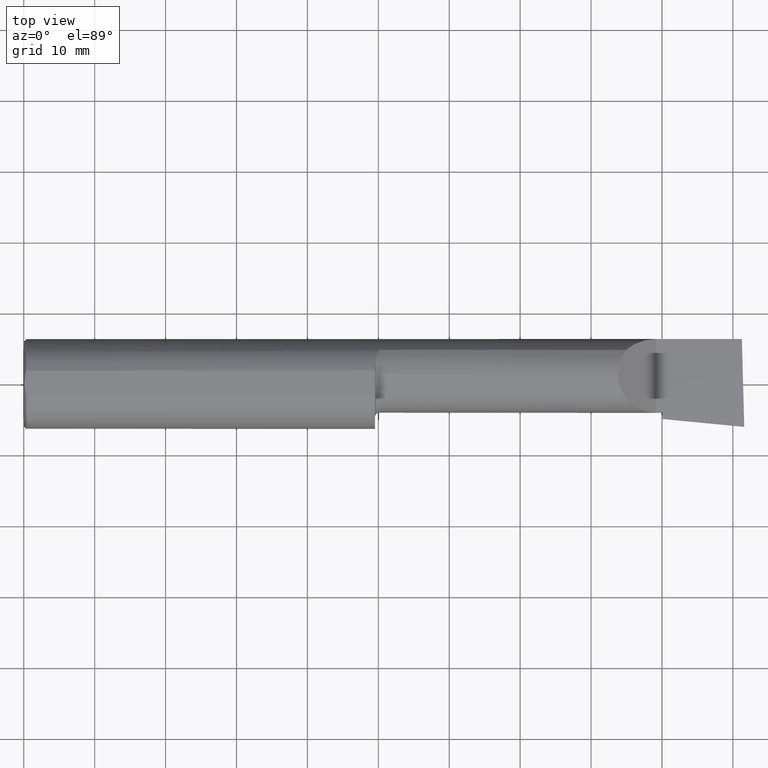
[diagram: clean part render]
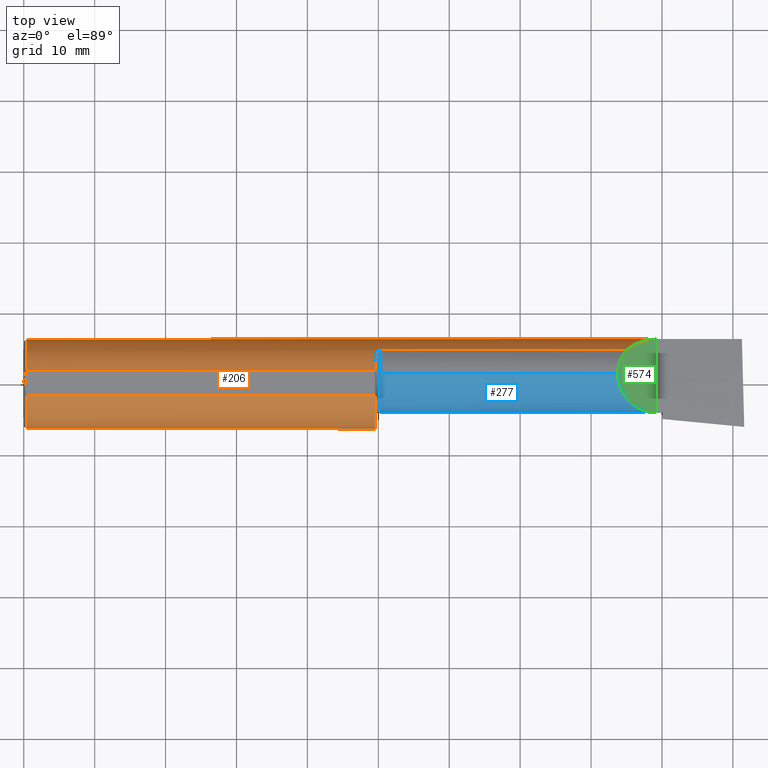
[diagram: same view with three faces highlighted in distinct colors, each labeled with its STEP entity id]
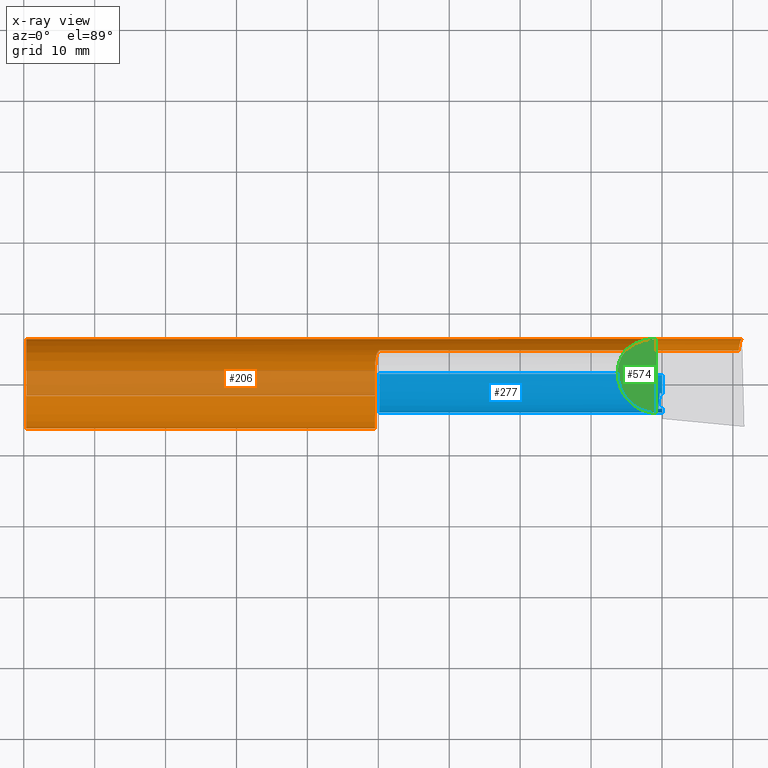
[diagram: x-ray of the same camera — body ghosted, the three highlighted faces saturated]
A machine part, top view with three faces highlighted in distinct colors.
The next image is the same camera in x-ray (body ghosted, the three faces saturated) — at least one of them is partly hidden behind the body in this view.
Their STEP definitions:

[orange] entity #206 — the highlighted cylindrical surface (partial cylindrical patch) has radius 6.3462 mm, axis along (-1, -0, -0).
#4 = CYLINDRICAL_SURFACE ( 'NONE', #106, 0.2498499999999999888 ) ;
#13 = VERTEX_POINT ( 'NONE', #49 ) ;
#14 = CARTESIAN_POINT ( 'NONE',  ( 1.970138573936399906, 0.1849738682364315823, -0.1679602226613267635 ) ) ;
#15 = ORIENTED_EDGE ( 'NONE', *, *, #587, .T. ) ;
#18 = AXIS2_PLACEMENT_3D ( 'NONE', #418, #716, #414 ) ;
#20 = CARTESIAN_POINT ( 'NONE',  ( 1.957341173198633433, 0.1582250006961543887, -0.1936724403215138446 ) ) ;
#24 = EDGE_CURVE ( 'NONE', #134, #599, #90, .T. ) ;
#33 = DIRECTION ( 'NONE',  ( -1.000000000000000000, -0.000000000000000000, -0.000000000000000000 ) ) ;
#36 = ORIENTED_EDGE ( 'NONE', *, *, #417, .T. ) ;
#37 = CARTESIAN_POINT ( 'NONE',  ( 1.950000000000000178, 0.000000000000000000, 0.000000000000000000 ) ) ;
#41 = DIRECTION ( 'NONE',  ( 0.000000000000000000, 0.000000000000000000, 1.000000000000000000 ) ) ;
#49 = CARTESIAN_POINT ( 'NONE',  ( 1.950000000000000178, 0.08036415094339534326, -0.2365726648265753795 ) ) ;
#51 = CARTESIAN_POINT ( 'NONE',  ( 1.975000000000000089, 0.1868028301886779929, 0.1659208399614101603 ) ) ;
#55 = VECTOR ( 'NONE', #425, 39.37007874015748143 ) ;
#62 =( BOUNDED_CURVE ( )  B_SPLINE_CURVE ( 3, ( #155, #262, #624, #404 ),
 .UNSPECIFIED., .F., .F. ) 
 B_SPLINE_CURVE_WITH_KNOTS ( ( 4, 4 ),
 ( 0.6220170400679905232, 1.348282100702874908 ),
 .UNSPECIFIED. ) 
 CURVE ( )  GEOMETRIC_REPRESENTATION_ITEM ( )  RATIONAL_B_SPLINE_CURVE ( ( 1.000000000000000000, 0.9565258159410993111, 0.9565258159410993111, 1.000000000000000000 ) ) 
 REPRESENTATION_ITEM ( '' )  );
#74 = CARTESIAN_POINT ( 'NONE',  ( 1.962765002235293599, 0.1743275501927397109, 0.1790622127600486335 ) ) ;
#76 = LINE ( 'NONE', #310, #273 ) ;
#79 = CIRCLE ( 'NONE', #347, 0.2498499999999999888 ) ;
#90 = CIRCLE ( 'NONE', #578, 0.2498499999999999888 ) ;
#91 = ORIENTED_EDGE ( 'NONE', *, *, #431, .F. ) ;
#92 = CARTESIAN_POINT ( 'NONE',  ( 0.01499999999999998904, 0.06997856814768362022, 0.2398500000000000076 ) ) ;
#104 = CARTESIAN_POINT ( 'NONE',  ( 0.000000000000000000, -0.06997856814768356470, 0.2398500000000000076 ) ) ;
#106 = AXIS2_PLACEMENT_3D ( 'NONE', #534, #415, #650 ) ;
#126 = CARTESIAN_POINT ( 'NONE',  ( 3.509999999999999787, 0.2498499999999998222, -6.245698675651498620E-17 ) ) ;
#131 = CARTESIAN_POINT ( 'NONE',  ( 1.973547768521294987, 0.1868028301886782705, -0.1659208399614101603 ) ) ;
#134 = VERTEX_POINT ( 'NONE', #466 ) ;
#137 = CARTESIAN_POINT ( 'NONE',  ( 1.965861643147096327, 0.1799299906519286341, 0.1733704358813192570 ) ) ;
#139 = CARTESIAN_POINT ( 'NONE',  ( 1.952700393434439796, 0.1312406203802477800, 0.2128933010837855688 ) ) ;
#148 = EDGE_CURVE ( 'NONE', #13, #714, #322, .T. ) ;
#155 = CARTESIAN_POINT ( 'NONE',  ( 3.968970726278978400, 0.1868028301886789366, -0.1659208399614092722 ) ) ;
#165 = VERTEX_POINT ( 'NONE', #290 ) ;
#167 = CARTESIAN_POINT ( 'NONE',  ( 2.760000000000000231, 0.1868028301886789366, -0.1659208399614092722 ) ) ;
#176 = EDGE_LOOP ( 'NONE', ( #91, #36, #481, #422, #582, #535, #309, #413, #638, #254, #435, #180, #15 ) ) ;
#180 = ORIENTED_EDGE ( 'NONE', *, *, #402, .T. ) ;
#181 = B_SPLINE_CURVE_WITH_KNOTS ( 'NONE', 3,
 ( #363, #602, #611, #321, #139, #664, #669, #483, #74, #137, #436, #308, #678, #316, #383, #494 ),
 .UNSPECIFIED., .F., .F.,
 ( 4, 2, 2, 2, 2, 2, 2, 4 ),
 ( 0.0001284169230012233967, 0.0009841683951816670127, 0.001839919867362110493, 0.002695671339542555275, 0.003123547075632775605, 0.003337484943677882301, 0.003444453877700434565, 0.003551422811722986829 ),
 .UNSPECIFIED. ) ;
#182 = CARTESIAN_POINT ( 'NONE',  ( 7.089685198749692867E-32, 0.2498499999999999610, 4.685946446163635703E-16 ) ) ;
#186 = CARTESIAN_POINT ( 'NONE',  ( 1.961285743882607902, 0.1704402150608101962, -0.1827701868778709715 ) ) ;
#188 = VERTEX_POINT ( 'NONE', #710 ) ;
#196 = CARTESIAN_POINT ( 'NONE',  ( 0.01499999999999965423, -0.06997856814768402267, 0.2398500000000000076 ) ) ;
#206 = ADVANCED_FACE ( 'NONE', ( #704 ), #4, .T. ) ;
#213 = DIRECTION ( 'NONE',  ( -1.000000000000000000, -0.000000000000000000, -0.000000000000000000 ) ) ;
#220 = LINE ( 'NONE', #167, #393 ) ;
#226 = EDGE_CURVE ( 'NONE', #540, #734, #348, .T. ) ;
#245 = CIRCLE ( 'NONE', #18, 0.2498499999999999888 ) ;
#252 = VECTOR ( 'NONE', #444, 39.37007874015748143 ) ;
#254 = ORIENTED_EDGE ( 'NONE', *, *, #302, .T. ) ;
#262 = CARTESIAN_POINT ( 'NONE',  ( 3.973345850378709798, 0.2278791102234772881, -0.1196748990301331472 ) ) ;
#273 = VECTOR ( 'NONE', #656, 39.37007874015748143 ) ;
#278 = CARTESIAN_POINT ( 'NONE',  ( 3.509999999999999787, 0.2498499999999998222, -6.245698675651498620E-17 ) ) ;
#290 = CARTESIAN_POINT ( 'NONE',  ( 1.950000000000000178, 0.06997856814768363409, 0.2398500000000000076 ) ) ;
#297 = LINE ( 'NONE', #182, #55 ) ;
#300 = VERTEX_POINT ( 'NONE', #423 ) ;
#302 = EDGE_CURVE ( 'NONE', #519, #540, #181, .T. ) ;
#308 = CARTESIAN_POINT ( 'NONE',  ( 1.969294329172793789, 0.1841965204963175451, 0.1688138510234148959 ) ) ;
#309 = ORIENTED_EDGE ( 'NONE', *, *, #579, .F. ) ;
#310 = CARTESIAN_POINT ( 'NONE',  ( 0.000000000000000000, 0.06997856814768362022, 0.2398500000000000076 ) ) ;
#316 = CARTESIAN_POINT ( 'NONE',  ( 1.972248316546590496, 0.1862833954073875031, 0.1665066509556023255 ) ) ;
#321 = CARTESIAN_POINT ( 'NONE',  ( 1.951680899895053223, 0.1215019751025619016, 0.2186055937858619458 ) ) ;
#322 = CIRCLE ( 'NONE', #653, 0.2498499999999999888 ) ;
#341 = CARTESIAN_POINT ( 'NONE',  ( 1.969285582744839003, 0.1841881072713794365, -0.1688230283719365232 ) ) ;
#347 = AXIS2_PLACEMENT_3D ( 'NONE', #37, #213, #41 ) ;
#348 = LINE ( 'NONE', #464, #676 ) ;
#350 = DIRECTION ( 'NONE',  ( -1.000000000000000000, -0.000000000000000000, -0.000000000000000000 ) ) ;
#357 = CARTESIAN_POINT ( 'NONE',  ( 1.975000000000000089, 0.1868028301886779097, -0.1659208399614102436 ) ) ;
#363 = CARTESIAN_POINT ( 'NONE',  ( 1.950000000000000178, 0.08036415094339534326, 0.2365726648265753795 ) ) ;
#367 = CARTESIAN_POINT ( 'NONE',  ( 1.967016733372314530, 0.1817333077058755075, -0.1714754572696078894 ) ) ;
#383 = CARTESIAN_POINT ( 'NONE',  ( 1.973549916698492668, 0.1868028301886780207, 0.1659208399614101603 ) ) ;
#393 = VECTOR ( 'NONE', #33, 39.37007874015748143 ) ;
#400 = CARTESIAN_POINT ( 'NONE',  ( 1.975000000000000089, 0.1868028301886779097, -0.1659208399614102436 ) ) ;
#402 = EDGE_CURVE ( 'NONE', #734, #527, #588, .T. ) ;
#404 = CARTESIAN_POINT ( 'NONE',  ( 3.986926801651458074, 0.2498499999999998500, -1.346424553798598529E-16 ) ) ;
#408 = CARTESIAN_POINT ( 'NONE',  ( 1.950000000000000178, 0.000000000000000000, 0.000000000000000000 ) ) ;
#413 = ORIENTED_EDGE ( 'NONE', *, *, #529, .T. ) ;
#414 = DIRECTION ( 'NONE',  ( 0.000000000000000000, 0.000000000000000000, 1.000000000000000000 ) ) ;
#415 = DIRECTION ( 'NONE',  ( -1.000000000000000000, -0.000000000000000000, -0.000000000000000000 ) ) ;
#417 = EDGE_CURVE ( 'NONE', #188, #472, #220, .T. ) ;
#418 = CARTESIAN_POINT ( 'NONE',  ( 0.01499999999999998904, 0.000000000000000000, 0.000000000000000000 ) ) ;
#422 = ORIENTED_EDGE ( 'NONE', *, *, #148, .T. ) ;
#423 = CARTESIAN_POINT ( 'NONE',  ( 3.986926801651458074, 0.2498499999999998500, -1.346424553798598529E-16 ) ) ;
#425 = DIRECTION ( 'NONE',  ( 1.000000000000000000, 0.000000000000000000, 0.000000000000000000 ) ) ;
#431 = EDGE_CURVE ( 'NONE', #188, #300, #62, .T. ) ;
#434 = CARTESIAN_POINT ( 'NONE',  ( 3.344079160038590626, 0.1868028301886802411, 0.1659208399614079676 ) ) ;
#435 = ORIENTED_EDGE ( 'NONE', *, *, #226, .T. ) ;
#436 = CARTESIAN_POINT ( 'NONE',  ( 1.967022161877249431, 0.1817412653940178591, 0.1714670312165150201 ) ) ;
#444 = DIRECTION ( 'NONE',  ( -1.000000000000000000, -0.000000000000000000, -0.000000000000000000 ) ) ;
#446 = EDGE_CURVE ( 'NONE', #714, #599, #499, .T. ) ;
#449 = CARTESIAN_POINT ( 'NONE',  ( 0.01499999999999998904, 0.000000000000000000, 0.000000000000000000 ) ) ;
#452 = CARTESIAN_POINT ( 'NONE',  ( 3.390325100969866945, 0.2278791102234777044, 0.1196748990301318705 ) ) ;
#456 = DIRECTION ( 'NONE',  ( 0.000000000000000000, 0.000000000000000000, 1.000000000000000000 ) ) ;
#458 = CARTESIAN_POINT ( 'NONE',  ( 3.344079160038590626, 0.1868028301886802411, 0.1659208399614079676 ) ) ;
#463 = CARTESIAN_POINT ( 'NONE',  ( 1.950000000000000178, 0.08036415094339534326, 0.2365726648265753795 ) ) ;
#464 = CARTESIAN_POINT ( 'NONE',  ( 2.760000000000000231, 0.1868028301886789366, 0.1659208399614092722 ) ) ;
#466 = CARTESIAN_POINT ( 'NONE',  ( 0.01499999999999998904, 0.000000000000000000, -0.2498499999999999888 ) ) ;
#472 = VERTEX_POINT ( 'NONE', #400 ) ;
#481 = ORIENTED_EDGE ( 'NONE', *, *, #532, .T. ) ;
#483 = CARTESIAN_POINT ( 'NONE',  ( 1.961269318387891980, 0.1703938977634094076, 0.1828127877825261038 ) ) ;
#485 = CARTESIAN_POINT ( 'NONE',  ( 1.962797058507744996, 0.1743943839926572759, -0.1789958554125711809 ) ) ;
#489 = CARTESIAN_POINT ( 'NONE',  ( 1.950000000000000178, -0.06997856814768405043, 0.2398500000000000076 ) ) ;
#494 = CARTESIAN_POINT ( 'NONE',  ( 1.975000000000000089, 0.1868028301886779929, 0.1659208399614101603 ) ) ;
#499 = LINE ( 'NONE', #104, #252 ) ;
#518 = CARTESIAN_POINT ( 'NONE',  ( 1.972232603162240583, 0.1862758070845861591, -0.1665151405181440336 ) ) ;
#519 = VERTEX_POINT ( 'NONE', #463 ) ;
#527 = VERTEX_POINT ( 'NONE', #126 ) ;
#529 = EDGE_CURVE ( 'NONE', #722, #165, #76, .T. ) ;
#532 = EDGE_CURVE ( 'NONE', #472, #13, #759, .T. ) ;
#534 = CARTESIAN_POINT ( 'NONE',  ( 0.000000000000000000, 0.000000000000000000, 0.000000000000000000 ) ) ;
#535 = ORIENTED_EDGE ( 'NONE', *, *, #24, .F. ) ;
#536 = CARTESIAN_POINT ( 'NONE',  ( 1.955537042546467319, 0.1495003888704970751, -0.2004994225712685152 ) ) ;
#540 = VERTEX_POINT ( 'NONE', #51 ) ;
#544 = CARTESIAN_POINT ( 'NONE',  ( 1.950000000000000178, 0.08036415094339534326, -0.2365726648265753795 ) ) ;
#575 = CARTESIAN_POINT ( 'NONE',  ( 1.951227564404961479, 0.1217005943024275089, -0.2193523119135148414 ) ) ;
#578 = AXIS2_PLACEMENT_3D ( 'NONE', #449, #682, #456 ) ;
#579 = EDGE_CURVE ( 'NONE', #722, #134, #245, .T. ) ;
#582 = ORIENTED_EDGE ( 'NONE', *, *, #446, .T. ) ;
#587 = EDGE_CURVE ( 'NONE', #527, #300, #297, .T. ) ;
#588 =( BOUNDED_CURVE ( )  B_SPLINE_CURVE ( 3, ( #458, #452, #698, #278 ),
 .UNSPECIFIED., .F., .T. ) 
 B_SPLINE_CURVE_WITH_KNOTS ( ( 4, 4 ),
 ( 0.8445312661600193893, 1.570796326794896780 ),
 .UNSPECIFIED. ) 
 CURVE ( )  GEOMETRIC_REPRESENTATION_ITEM ( )  RATIONAL_B_SPLINE_CURVE ( ( 1.000000000000000000, 0.9565258159411001992, 0.9565258159411001992, 1.000000000000000000 ) ) 
 REPRESENTATION_ITEM ( '' )  );
#599 = VERTEX_POINT ( 'NONE', #196 ) ;
#602 = CARTESIAN_POINT ( 'NONE',  ( 1.949999999999999512, 0.09103905338546482151, 0.2329463816641088036 ) ) ;
#604 = CARTESIAN_POINT ( 'NONE',  ( 1.949999999999990408, 0.1016924291521876939, -0.2293274111511746649 ) ) ;
#611 = CARTESIAN_POINT ( 'NONE',  ( 1.950331894516964759, 0.1014003285145110428, 0.2286243840132589633 ) ) ;
#624 = CARTESIAN_POINT ( 'NONE',  ( 3.979603243914507260, 0.2498499999999999055, -0.06185424669427529165 ) ) ;
#638 = ORIENTED_EDGE ( 'NONE', *, *, #658, .T. ) ;
#650 = DIRECTION ( 'NONE',  ( 0.000000000000000000, 0.000000000000000000, 1.000000000000000000 ) ) ;
#653 = AXIS2_PLACEMENT_3D ( 'NONE', #408, #350, #757 ) ;
#656 = DIRECTION ( 'NONE',  ( 1.000000000000000000, 0.000000000000000000, 0.000000000000000000 ) ) ;
#658 = EDGE_CURVE ( 'NONE', #165, #519, #79, .T. ) ;
#664 = CARTESIAN_POINT ( 'NONE',  ( 1.955552616244823128, 0.1495611067857159082, 0.2004473332852681478 ) ) ;
#669 = CARTESIAN_POINT ( 'NONE',  ( 1.957342647456793205, 0.1582204157543814493, 0.1936739931581295815 ) ) ;
#676 = VECTOR ( 'NONE', #706, 39.37007874015748143 ) ;
#678 = CARTESIAN_POINT ( 'NONE',  ( 1.970147539572908668, 0.1849815983377223472, 0.1679517088135080161 ) ) ;
#682 = DIRECTION ( 'NONE',  ( -1.000000000000000000, -0.000000000000000000, -0.000000000000000000 ) ) ;
#698 = CARTESIAN_POINT ( 'NONE',  ( 3.448145753305725147, 0.2498499999999999610, 0.06185424669427452143 ) ) ;
#704 = FACE_OUTER_BOUND ( 'NONE', #176, .T. ) ;
#706 = DIRECTION ( 'NONE',  ( 1.000000000000000000, 0.000000000000000000, 0.000000000000000000 ) ) ;
#710 = CARTESIAN_POINT ( 'NONE',  ( 3.968970726278978400, 0.1868028301886789366, -0.1659208399614092722 ) ) ;
#714 = VERTEX_POINT ( 'NONE', #489 ) ;
#716 = DIRECTION ( 'NONE',  ( -1.000000000000000000, -0.000000000000000000, -0.000000000000000000 ) ) ;
#722 = VERTEX_POINT ( 'NONE', #92 ) ;
#734 = VERTEX_POINT ( 'NONE', #434 ) ;
#756 = CARTESIAN_POINT ( 'NONE',  ( 1.965875558094660969, 0.1799506819598025720, -0.1733486322212195174 ) ) ;
#757 = DIRECTION ( 'NONE',  ( 0.000000000000000000, 0.000000000000000000, 1.000000000000000000 ) ) ;
#759 = B_SPLINE_CURVE_WITH_KNOTS ( 'NONE', 3,
 ( #357, #131, #518, #14, #341, #367, #756, #485, #186, #20, #536, #575, #604, #544 ),
 .UNSPECIFIED., .F., .F.,
 ( 4, 2, 2, 2, 2, 2, 4 ),
 ( 1.967619685288262155E-07, 0.0001090840123077906927, 0.0002179712626470525620, 0.0004357457633255889043, 0.0008712947646826614805, 0.001742392767396811620, 0.003484588772825109732 ),
 .UNSPECIFIED. ) ;

[blue] entity #277 — the highlighted cylindrical surface (partial cylindrical patch) has radius 5.414 mm, axis along (-1, -0, -0).
#22 = CARTESIAN_POINT ( 'NONE',  ( 3.531082512009719565, -0.04783050615766656910, -0.1877927888072083717 ) ) ;
#31 = ORIENTED_EDGE ( 'NONE', *, *, #645, .F. ) ;
#40 = ORIENTED_EDGE ( 'NONE', *, *, #553, .T. ) ;
#42 = DIRECTION ( 'NONE',  ( 0.000000000000000000, 0.000000000000000000, 1.000000000000000000 ) ) ;
#46 = CARTESIAN_POINT ( 'NONE',  ( 3.544999999999999485, -0.1345157694617464539, -0.1013447517297721839 ) ) ;
#57 =( BOUNDED_CURVE ( )  B_SPLINE_CURVE ( 3, ( #199, #194, #427, #22 ),
 .UNSPECIFIED., .F., .T. ) 
 B_SPLINE_CURVE_WITH_KNOTS ( ( 4, 4 ),
 ( 3.425081864342414573, 3.440661644967334176 ),
 .UNSPECIFIED. ) 
 CURVE ( )  GEOMETRIC_REPRESENTATION_ITEM ( )  RATIONAL_B_SPLINE_CURVE ( ( 1.000000000000000000, 0.9999797726385939445, 0.9999797726385939445, 1.000000000000000000 ) ) 
 REPRESENTATION_ITEM ( '' )  );
#66 = CARTESIAN_POINT ( 'NONE',  ( 3.544999999999999485, -0.1345157694617464539, -0.1013447517297721839 ) ) ;
#70 = CARTESIAN_POINT ( 'NONE',  ( 3.522499172395930245, -0.1369718963205479589, -0.09666230448512491691 ) ) ;
#71 = VERTEX_POINT ( 'NONE', #46 ) ;
#72 = VECTOR ( 'NONE', #515, 39.37007874015748143 ) ;
#87 = DIRECTION ( 'NONE',  ( 0.000000000000000000, 0.000000000000000000, 1.000000000000000000 ) ) ;
#95 = VERTEX_POINT ( 'NONE', #340 ) ;
#96 = CARTESIAN_POINT ( 'NONE',  ( 3.296849999999997394, -0.07186037918017482151, 0.2131500000000001172 ) ) ;
#125 = EDGE_LOOP ( 'NONE', ( #718, #203, #496, #381, #586, #601, #359, #31, #40, #129 ) ) ;
#129 = ORIENTED_EDGE ( 'NONE', *, *, #732, .F. ) ;
#149 = CARTESIAN_POINT ( 'NONE',  ( 3.544999999999999929, 0.05299999999999998462, 0.000000000000000000 ) ) ;
#152 = VERTEX_POINT ( 'NONE', #474 ) ;
#158 = EDGE_CURVE ( 'NONE', #236, #71, #197, .T. ) ;
#183 = EDGE_CURVE ( 'NONE', #317, #236, #271, .T. ) ;
#194 = CARTESIAN_POINT ( 'NONE',  ( 3.540481425188584552, -0.04977693083852395561, -0.1867379188486350539 ) ) ;
#197 =( BOUNDED_CURVE ( )  B_SPLINE_CURVE ( 3, ( #637, #295, #471, #66 ),
 .UNSPECIFIED., .F., .T. ) 
 B_SPLINE_CURVE_WITH_KNOTS ( ( 4, 4 ),
 ( 2.833296237007180363, 2.858103442837171659 ),
 .UNSPECIFIED. ) 
 CURVE ( )  GEOMETRIC_REPRESENTATION_ITEM ( )  RATIONAL_B_SPLINE_CURVE ( ( 1.000000000000000000, 0.9999487175357286706, 0.9999487175357286706, 1.000000000000000000 ) ) 
 REPRESENTATION_ITEM ( '' )  );
#199 = CARTESIAN_POINT ( 'NONE',  ( 3.544999999999999929, -0.05074392122494208318, -0.1861991442216451575 ) ) ;
#200 = CARTESIAN_POINT ( 'NONE',  ( 0.000000000000000000, 0.05300000000000001238, -0.2131500000000000894 ) ) ;
#203 = ORIENTED_EDGE ( 'NONE', *, *, #753, .T. ) ;
#212 = VECTOR ( 'NONE', #600, 39.37007874015748143 ) ;
#218 = CIRCLE ( 'NONE', #525, 0.2131499999999999784 ) ;
#236 = VERTEX_POINT ( 'NONE', #477 ) ;
#241 = CARTESIAN_POINT ( 'NONE',  ( 3.544999999999999929, -0.1601499999999999868, 4.685946446163635703E-16 ) ) ;
#246 = DIRECTION ( 'NONE',  ( 0.000000000000000000, 0.000000000000000000, 1.000000000000000000 ) ) ;
#269 = DIRECTION ( 'NONE',  ( -1.000000000000000000, -0.000000000000000000, -0.000000000000000000 ) ) ;
#270 = CARTESIAN_POINT ( 'NONE',  ( 7.089685198749692867E-32, -0.1601500000000000701, 4.685946446163635703E-16 ) ) ;
#271 =( BOUNDED_CURVE ( )  B_SPLINE_CURVE ( 3, ( #526, #760, #412, #70 ),
 .UNSPECIFIED., .F., .T. ) 
 B_SPLINE_CURVE_WITH_KNOTS ( ( 4, 4 ),
 ( 5.205137849474837708, 5.812503257434991077 ),
 .UNSPECIFIED. ) 
 CURVE ( )  GEOMETRIC_REPRESENTATION_ITEM ( )  RATIONAL_B_SPLINE_CURVE ( ( 1.000000000000000000, 0.9694944665783499227, 0.9694944665783499227, 1.000000000000000000 ) ) 
 REPRESENTATION_ITEM ( '' )  );
#277 = ADVANCED_FACE ( 'NONE', ( #432 ), #606, .T. ) ;
#291 = VERTEX_POINT ( 'NONE', #241 ) ;
#292 = EDGE_CURVE ( 'NONE', #152, #317, #57, .T. ) ;
#295 = CARTESIAN_POINT ( 'NONE',  ( 3.530304439966509999, -0.1361725685965918531, -0.09823323541120163038 ) ) ;
#312 = CARTESIAN_POINT ( 'NONE',  ( 3.531082512009719565, -0.04783050615766656910, -0.1877927888072083717 ) ) ;
#317 = VERTEX_POINT ( 'NONE', #312 ) ;
#331 = AXIS2_PLACEMENT_3D ( 'NONE', #680, #382, #87 ) ;
#334 = DIRECTION ( 'NONE',  ( -1.000000000000000000, -0.000000000000000000, -0.000000000000000000 ) ) ;
#340 = CARTESIAN_POINT ( 'NONE',  ( 1.975000000000000089, 0.05299999999999998462, 0.2131500000000002282 ) ) ;
#345 = VERTEX_POINT ( 'NONE', #549 ) ;
#359 = ORIENTED_EDGE ( 'NONE', *, *, #470, .F. ) ;
#376 = EDGE_CURVE ( 'NONE', #71, #291, #524, .T. ) ;
#378 = CARTESIAN_POINT ( 'NONE',  ( 1.975000000000000089, 0.05300000000000001238, -0.2131500000000002282 ) ) ;
#381 = ORIENTED_EDGE ( 'NONE', *, *, #183, .T. ) ;
#382 = DIRECTION ( 'NONE',  ( -1.000000000000000000, -0.000000000000000000, -0.000000000000000000 ) ) ;
#384 = VERTEX_POINT ( 'NONE', #558 ) ;
#390 = CARTESIAN_POINT ( 'NONE',  ( 3.544999999999999929, 0.05299999999999998462, 0.000000000000000000 ) ) ;
#395 = CIRCLE ( 'NONE', #331, 0.2131500000000002282 ) ;
#403 = AXIS2_PLACEMENT_3D ( 'NONE', #618, #660, #246 ) ;
#412 = CARTESIAN_POINT ( 'NONE',  ( 3.524413082451229418, -0.1170951804205965369, -0.1357263163794374117 ) ) ;
#427 = CARTESIAN_POINT ( 'NONE',  ( 3.535842168685239706, -0.04880577283880162959, -0.1872691444557817719 ) ) ;
#432 = FACE_OUTER_BOUND ( 'NONE', #125, .T. ) ;
#470 = EDGE_CURVE ( 'NONE', #479, #291, #628, .T. ) ;
#471 = CARTESIAN_POINT ( 'NONE',  ( 3.537805100486889565, -0.1353538176560922235, -0.09979413120600025278 ) ) ;
#473 = LINE ( 'NONE', #480, #212 ) ;
#474 = CARTESIAN_POINT ( 'NONE',  ( 3.544999999999999929, -0.05074392122494208318, -0.1861991442216451575 ) ) ;
#477 = CARTESIAN_POINT ( 'NONE',  ( 3.522499172395930245, -0.1369718963205479589, -0.09666230448512491691 ) ) ;
#479 = VERTEX_POINT ( 'NONE', #570 ) ;
#480 = CARTESIAN_POINT ( 'NONE',  ( 0.000000000000000000, 0.05299999999999998462, 0.2131500000000000894 ) ) ;
#496 = ORIENTED_EDGE ( 'NONE', *, *, #292, .T. ) ;
#498 = CARTESIAN_POINT ( 'NONE',  ( 3.296849999999997394, 0.05299999999999998462, 0.2131500000000000894 ) ) ;
#506 = DIRECTION ( 'NONE',  ( -1.000000000000000000, -0.000000000000000000, -0.000000000000000000 ) ) ;
#509 = VECTOR ( 'NONE', #269, 39.37007874015748143 ) ;
#515 = DIRECTION ( 'NONE',  ( 1.000000000000000000, 0.000000000000000000, 0.000000000000000000 ) ) ;
#524 = CIRCLE ( 'NONE', #626, 0.2131499999999999784 ) ;
#525 = AXIS2_PLACEMENT_3D ( 'NONE', #149, #506, #745 ) ;
#526 = CARTESIAN_POINT ( 'NONE',  ( 3.531082512009719565, -0.04783050615766656910, -0.1877927888072083717 ) ) ;
#549 = CARTESIAN_POINT ( 'NONE',  ( 3.544999999999999929, 0.05299999999999996381, -0.2131499999999999784 ) ) ;
#552 = LINE ( 'NONE', #200, #509 ) ;
#553 = EDGE_CURVE ( 'NONE', #384, #95, #473, .T. ) ;
#558 = CARTESIAN_POINT ( 'NONE',  ( 3.296849999999997394, 0.05299999999999998462, 0.2131500000000000894 ) ) ;
#562 = CARTESIAN_POINT ( 'NONE',  ( 3.385139620819823669, -0.1601500000000000978, 0.1248603791801748270 ) ) ;
#570 = CARTESIAN_POINT ( 'NONE',  ( 3.509999999999999787, -0.1601500000000001256, -6.245698675651498620E-17 ) ) ;
#584 =( BOUNDED_CURVE ( )  B_SPLINE_CURVE ( 3, ( #498, #96, #562, #617 ),
 .UNSPECIFIED., .F., .F. ) 
 B_SPLINE_CURVE_WITH_KNOTS ( ( 4, 4 ),
 ( 0.000000000000000000, 1.570796326794896780 ),
 .UNSPECIFIED. ) 
 CURVE ( )  GEOMETRIC_REPRESENTATION_ITEM ( )  RATIONAL_B_SPLINE_CURVE ( ( 1.000000000000000000, 0.8047378541243649375, 0.8047378541243649375, 1.000000000000000000 ) ) 
 REPRESENTATION_ITEM ( '' )  );
#586 = ORIENTED_EDGE ( 'NONE', *, *, #158, .T. ) ;
#600 = DIRECTION ( 'NONE',  ( -1.000000000000000000, -0.000000000000000000, -0.000000000000000000 ) ) ;
#601 = ORIENTED_EDGE ( 'NONE', *, *, #376, .T. ) ;
#606 = CYLINDRICAL_SURFACE ( 'NONE', #403, 0.2131500000000000894 ) ;
#617 = CARTESIAN_POINT ( 'NONE',  ( 3.509999999999999787, -0.1601500000000001256, -6.245698675651498620E-17 ) ) ;
#618 = CARTESIAN_POINT ( 'NONE',  ( 0.000000000000000000, 0.05299999999999998462, 0.000000000000000000 ) ) ;
#626 = AXIS2_PLACEMENT_3D ( 'NONE', #390, #334, #42 ) ;
#628 = LINE ( 'NONE', #270, #72 ) ;
#637 = CARTESIAN_POINT ( 'NONE',  ( 3.522499172395930245, -0.1369718963205479589, -0.09666230448512491691 ) ) ;
#645 = EDGE_CURVE ( 'NONE', #384, #479, #584, .T. ) ;
#660 = DIRECTION ( 'NONE',  ( -1.000000000000000000, -0.000000000000000000, -0.000000000000000000 ) ) ;
#677 = EDGE_CURVE ( 'NONE', #345, #687, #552, .T. ) ;
#680 = CARTESIAN_POINT ( 'NONE',  ( 1.975000000000000089, 0.05299999999999998462, 0.000000000000000000 ) ) ;
#687 = VERTEX_POINT ( 'NONE', #378 ) ;
#718 = ORIENTED_EDGE ( 'NONE', *, *, #677, .F. ) ;
#732 = EDGE_CURVE ( 'NONE', #687, #95, #395, .T. ) ;
#745 = DIRECTION ( 'NONE',  ( 0.000000000000000000, 0.000000000000000000, 1.000000000000000000 ) ) ;
#753 = EDGE_CURVE ( 'NONE', #345, #152, #218, .T. ) ;
#760 = CARTESIAN_POINT ( 'NONE',  ( 3.527364221733843230, -0.08644642713185443639, -0.1670589636038929682 ) ) ;

[green] entity #574 — the highlighted planar face has unit normal (-0.7071, 0, -0.7071).
#2 = CARTESIAN_POINT ( 'NONE',  ( 3.296849999999997394, 0.05299999999999998462, 0.2131500000000000894 ) ) ;
#67 = EDGE_LOOP ( 'NONE', ( #77, #742, #625, #112 ) ) ;
#68 = PLANE ( 'NONE',  #482 ) ;
#77 = ORIENTED_EDGE ( 'NONE', *, *, #402, .F. ) ;
#96 = CARTESIAN_POINT ( 'NONE',  ( 3.296849999999997394, -0.07186037918017482151, 0.2131500000000001172 ) ) ;
#112 = ORIENTED_EDGE ( 'NONE', *, *, #613, .T. ) ;
#116 =( BOUNDED_CURVE ( )  B_SPLINE_CURVE ( 3, ( #184, #343, #128, #2 ),
 .UNSPECIFIED., .F., .F. ) 
 B_SPLINE_CURVE_WITH_KNOTS ( ( 4, 4 ),
 ( 5.604538515477342386, 6.283185307179586232 ),
 .UNSPECIFIED. ) 
 CURVE ( )  GEOMETRIC_REPRESENTATION_ITEM ( )  RATIONAL_B_SPLINE_CURVE ( ( 1.000000000000000000, 0.9619867256453018545, 0.9619867256453018545, 1.000000000000000000 ) ) 
 REPRESENTATION_ITEM ( '' )  );
#126 = CARTESIAN_POINT ( 'NONE',  ( 3.509999999999999787, 0.2498499999999998222, -6.245698675651498620E-17 ) ) ;
#128 = CARTESIAN_POINT ( 'NONE',  ( 3.296849999999997394, 0.1021668565906573567, 0.2131500000000001449 ) ) ;
#146 = EDGE_CURVE ( 'NONE', #734, #384, #116, .T. ) ;
#153 = VECTOR ( 'NONE', #531, 39.37007874015748143 ) ;
#184 = CARTESIAN_POINT ( 'NONE',  ( 3.344079160038590626, 0.1868028301886802411, 0.1659208399614079676 ) ) ;
#240 = LINE ( 'NONE', #648, #153 ) ;
#243 = DIRECTION ( 'NONE',  ( -0.7071067811865513475, 0.000000000000000000, 0.7071067811865436870 ) ) ;
#278 = CARTESIAN_POINT ( 'NONE',  ( 3.509999999999999787, 0.2498499999999998222, -6.245698675651498620E-17 ) ) ;
#343 = CARTESIAN_POINT ( 'NONE',  ( 3.313215146136121891, 0.1485302233682066486, 0.1967848538638755362 ) ) ;
#361 = CARTESIAN_POINT ( 'NONE',  ( 3.509999999999999787, -0.2500000000000000555, -6.245698675651498620E-17 ) ) ;
#384 = VERTEX_POINT ( 'NONE', #558 ) ;
#402 = EDGE_CURVE ( 'NONE', #734, #527, #588, .T. ) ;
#434 = CARTESIAN_POINT ( 'NONE',  ( 3.344079160038590626, 0.1868028301886802411, 0.1659208399614079676 ) ) ;
#452 = CARTESIAN_POINT ( 'NONE',  ( 3.390325100969866945, 0.2278791102234777044, 0.1196748990301318705 ) ) ;
#458 = CARTESIAN_POINT ( 'NONE',  ( 3.344079160038590626, 0.1868028301886802411, 0.1659208399614079676 ) ) ;
#479 = VERTEX_POINT ( 'NONE', #570 ) ;
#482 = AXIS2_PLACEMENT_3D ( 'NONE', #361, #709, #243 ) ;
#498 = CARTESIAN_POINT ( 'NONE',  ( 3.296849999999997394, 0.05299999999999998462, 0.2131500000000000894 ) ) ;
#527 = VERTEX_POINT ( 'NONE', #126 ) ;
#531 = DIRECTION ( 'NONE',  ( -0.000000000000000000, 1.000000000000000000, -0.000000000000000000 ) ) ;
#558 = CARTESIAN_POINT ( 'NONE',  ( 3.296849999999997394, 0.05299999999999998462, 0.2131500000000000894 ) ) ;
#562 = CARTESIAN_POINT ( 'NONE',  ( 3.385139620819823669, -0.1601500000000000978, 0.1248603791801748270 ) ) ;
#570 = CARTESIAN_POINT ( 'NONE',  ( 3.509999999999999787, -0.1601500000000001256, -6.245698675651498620E-17 ) ) ;
#574 = ADVANCED_FACE ( 'NONE', ( #662 ), #68, .F. ) ;
#584 =( BOUNDED_CURVE ( )  B_SPLINE_CURVE ( 3, ( #498, #96, #562, #617 ),
 .UNSPECIFIED., .F., .F. ) 
 B_SPLINE_CURVE_WITH_KNOTS ( ( 4, 4 ),
 ( 0.000000000000000000, 1.570796326794896780 ),
 .UNSPECIFIED. ) 
 CURVE ( )  GEOMETRIC_REPRESENTATION_ITEM ( )  RATIONAL_B_SPLINE_CURVE ( ( 1.000000000000000000, 0.8047378541243649375, 0.8047378541243649375, 1.000000000000000000 ) ) 
 REPRESENTATION_ITEM ( '' )  );
#588 =( BOUNDED_CURVE ( )  B_SPLINE_CURVE ( 3, ( #458, #452, #698, #278 ),
 .UNSPECIFIED., .F., .T. ) 
 B_SPLINE_CURVE_WITH_KNOTS ( ( 4, 4 ),
 ( 0.8445312661600193893, 1.570796326794896780 ),
 .UNSPECIFIED. ) 
 CURVE ( )  GEOMETRIC_REPRESENTATION_ITEM ( )  RATIONAL_B_SPLINE_CURVE ( ( 1.000000000000000000, 0.9565258159411001992, 0.9565258159411001992, 1.000000000000000000 ) ) 
 REPRESENTATION_ITEM ( '' )  );
#613 = EDGE_CURVE ( 'NONE', #479, #527, #240, .T. ) ;
#617 = CARTESIAN_POINT ( 'NONE',  ( 3.509999999999999787, -0.1601500000000001256, -6.245698675651498620E-17 ) ) ;
#625 = ORIENTED_EDGE ( 'NONE', *, *, #645, .T. ) ;
#645 = EDGE_CURVE ( 'NONE', #384, #479, #584, .T. ) ;
#648 = CARTESIAN_POINT ( 'NONE',  ( 3.509999999999999787, -0.2500000000000000555, -6.245698675651498620E-17 ) ) ;
#662 = FACE_OUTER_BOUND ( 'NONE', #67, .T. ) ;
#698 = CARTESIAN_POINT ( 'NONE',  ( 3.448145753305725147, 0.2498499999999999610, 0.06185424669427452143 ) ) ;
#709 = DIRECTION ( 'NONE',  ( -0.7071067811865436870, 0.000000000000000000, -0.7071067811865513475 ) ) ;
#734 = VERTEX_POINT ( 'NONE', #434 ) ;
#742 = ORIENTED_EDGE ( 'NONE', *, *, #146, .T. ) ;